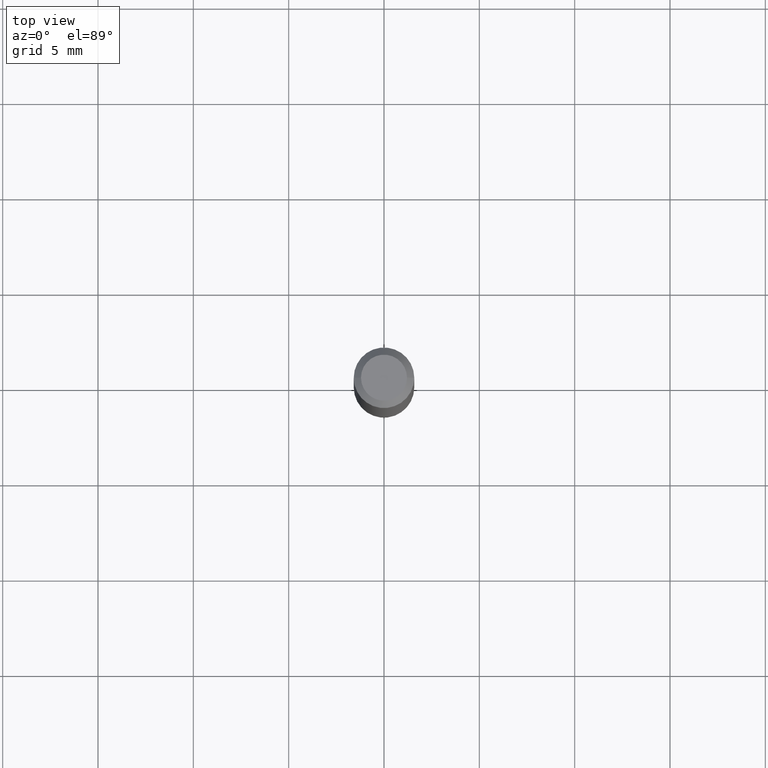
[diagram: clean part render]
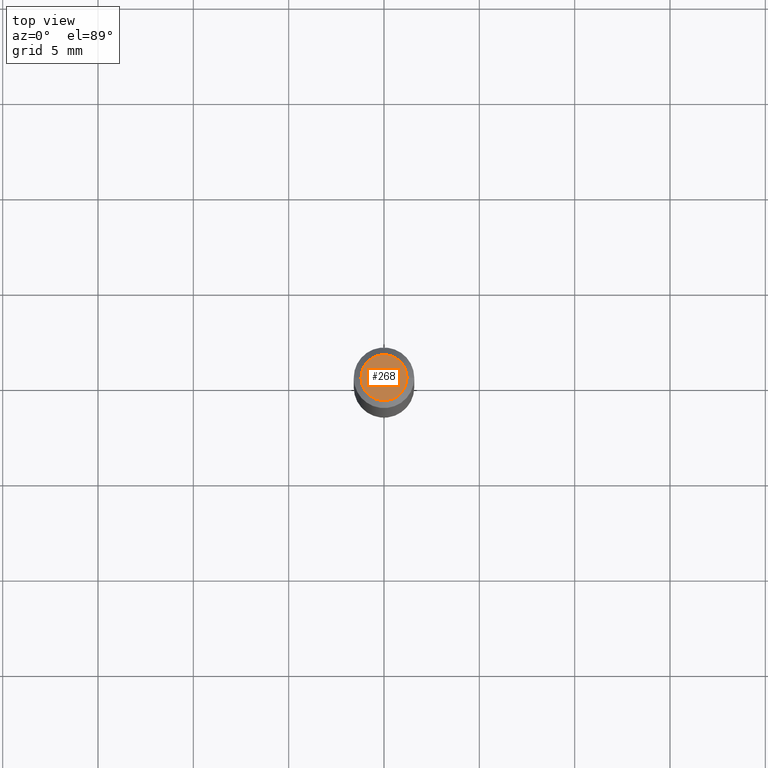
[diagram: same view with one face highlighted and labeled with its STEP entity id]
A machine part, top view. The second image highlights one B-rep face of the part: STEP entity #268.
In plain terms, the highlighted planar face has unit normal (0, -0, -1).
Its self-contained STEP definition (entity closure, byte-faithful):
#7 = DIRECTION ( 'NONE',  ( -2.445468806185136597E-29, 3.491481338843145583E-15, 1.000000000000000000 ) ) ;
#9 = DIRECTION ( 'NONE',  ( 1.000000000000000000, -6.982962677686267499E-15, 4.884662768193073002E-29 ) ) ;
#10 = EDGE_CURVE ( 'NONE', #257, #291, #134, .T. ) ;
#15 = CARTESIAN_POINT ( 'NONE',  ( 0.04749999999999999362, -4.035134999187576651E-16, 8.618106228654135916E-17 ) ) ;
#64 = EDGE_LOOP ( 'NONE', ( #464, #331 ) ) ;
#71 = CIRCLE ( 'NONE', #213, 0.04749999999999999362 ) ;
#76 = CARTESIAN_POINT ( 'NONE',  ( -2.107530995056288845E-45, 3.008995707351289501E-31, 8.618106228653878303E-17 ) ) ;
#86 = DIRECTION ( 'NONE',  ( 2.438088387897960049E-29, -3.491481338843145188E-15, -1.000000000000000000 ) ) ;
#129 = PLANE ( 'NONE',  #387 ) ;
#134 = CIRCLE ( 'NONE', #196, 0.04749999999999999362 ) ;
#140 = CARTESIAN_POINT ( 'NONE',  ( -0.04749999999999999362, 3.578768372314211985E-16, 8.618106228653636715E-17 ) ) ;
#162 = CARTESIAN_POINT ( 'NONE',  ( -2.107530995056288845E-45, 3.008995707351289501E-31, 8.618106228653878303E-17 ) ) ;
#166 = EDGE_CURVE ( 'NONE', #291, #257, #71, .T. ) ;
#196 = AXIS2_PLACEMENT_3D ( 'NONE', #76, #7, #226 ) ;
#213 = AXIS2_PLACEMENT_3D ( 'NONE', #162, #413, #9 ) ;
#226 = DIRECTION ( 'NONE',  ( 1.000000000000000000, -6.982962677686267499E-15, 4.884662768193073002E-29 ) ) ;
#257 = VERTEX_POINT ( 'NONE', #15 ) ;
#268 = ADVANCED_FACE ( 'NONE', ( #274 ), #129, .F. ) ;
#274 = FACE_OUTER_BOUND ( 'NONE', #64, .T. ) ;
#291 = VERTEX_POINT ( 'NONE', #140 ) ;
#331 = ORIENTED_EDGE ( 'NONE', *, *, #10, .T. ) ;
#376 = DIRECTION ( 'NONE',  ( -1.000000000000000000, 6.982962677686265922E-15, -4.876176775795935793E-29 ) ) ;
#387 = AXIS2_PLACEMENT_3D ( 'NONE', #412, #86, #376 ) ;
#412 = CARTESIAN_POINT ( 'NONE',  ( 3.316907271900976096E-16, 0.04749999999999999362, -1.227548324517800049E-16 ) ) ;
#413 = DIRECTION ( 'NONE',  ( -2.445468806185136597E-29, 3.491481338843145583E-15, 1.000000000000000000 ) ) ;
#464 = ORIENTED_EDGE ( 'NONE', *, *, #166, .T. ) ;